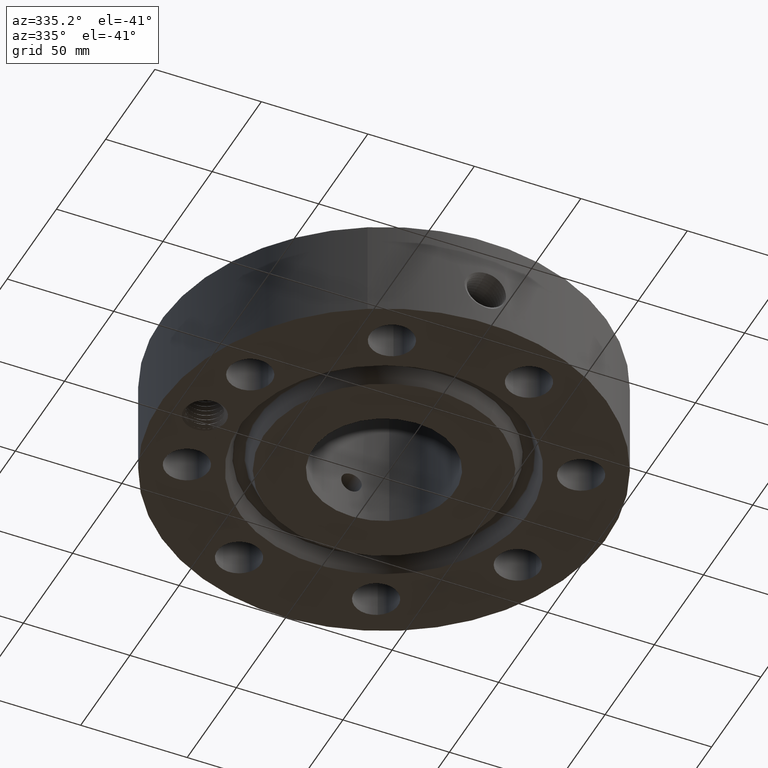
[diagram: clean part render]
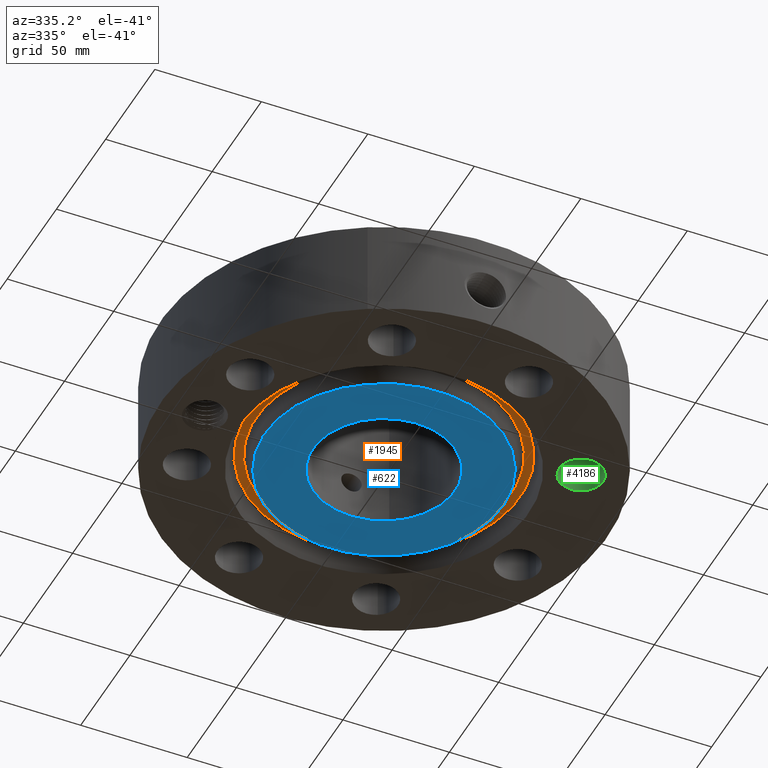
[diagram: same view with three faces highlighted in distinct colors, each labeled with its STEP entity id]
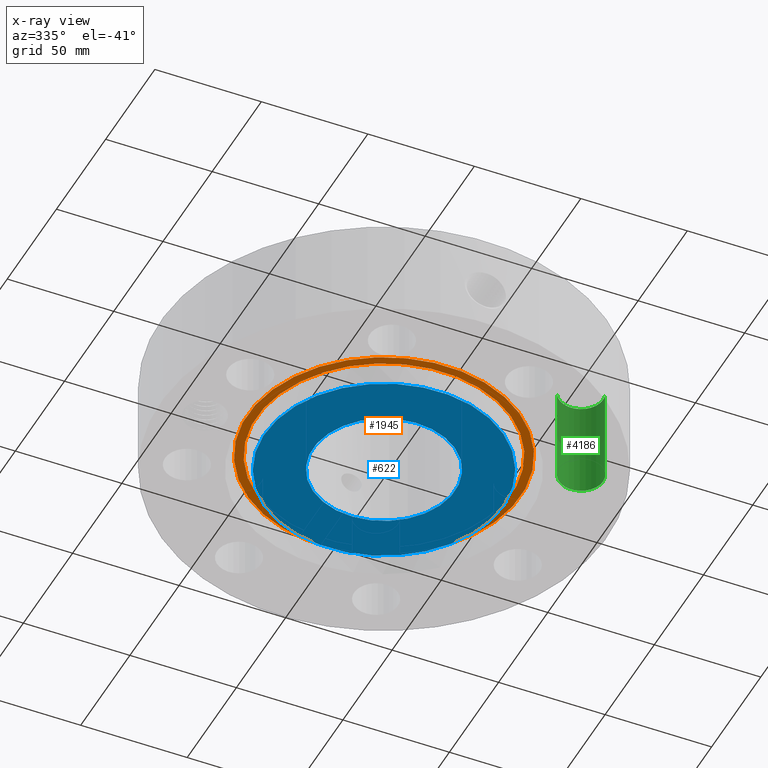
[diagram: x-ray of the same camera — body ghosted, the three highlighted faces saturated]
A machine part, auxiliary view with three faces highlighted in distinct colors.
The next image is the same camera in x-ray (body ghosted, the three faces saturated) — at least one of them is partly hidden behind the body in this view.
Their STEP definitions:

[orange] entity #1945 — the highlighted planar face has unit normal (0, 0, 1).
#1425=AXIS2_PLACEMENT_3D('Circle Axis2P3D',#1423,#1424,$) ;
#1451=AXIS2_PLACEMENT_3D('Circle Axis2P3D',#1449,#1450,$) ;
#1921=AXIS2_PLACEMENT_3D('Plane Axis2P3D',#1918,#1919,#1920) ;
#1925=AXIS2_PLACEMENT_3D('Circle Axis2P3D',#1923,#1924,$) ;
#1934=AXIS2_PLACEMENT_3D('Circle Axis2P3D',#1932,#1933,$) ;
#1423=CARTESIAN_POINT('Axis2P3D Location',(0.,0.,0.313000000001)) ;
#1427=CARTESIAN_POINT('Vertex',(1.12970830473,-2.06791718093,0.313000000001)) ;
#1429=CARTESIAN_POINT('Vertex',(-1.12970830473,2.06791718093,0.313000000001)) ;
#1449=CARTESIAN_POINT('Axis2P3D Location',(0.,0.,0.313000000001)) ;
#1918=CARTESIAN_POINT('Axis2P3D Location',(0.,2.35637906988,0.313000000001)) ;
#1923=CARTESIAN_POINT('Axis2P3D Location',(0.,0.,0.313000000001)) ;
#1927=CARTESIAN_POINT('Vertex',(-1.20749119597,2.2102978083,0.313000000001)) ;
#1929=CARTESIAN_POINT('Vertex',(1.20749119597,-2.2102978083,0.313000000001)) ;
#1932=CARTESIAN_POINT('Axis2P3D Location',(0.,0.,0.313000000001)) ;
#1424=DIRECTION('Axis2P3D Direction',(0.,0.,0.0393700787402)) ;
#1450=DIRECTION('Axis2P3D Direction',(0.,0.,0.0393700787402)) ;
#1919=DIRECTION('Axis2P3D Direction',(0.,0.,0.0393700787402)) ;
#1920=DIRECTION('Axis2P3D XDirection',(0.0393700787402,0.,0.)) ;
#1924=DIRECTION('Axis2P3D Direction',(0.,0.,0.0393700787402)) ;
#1933=DIRECTION('Axis2P3D Direction',(0.,0.,0.0393700787402)) ;
#1938=ORIENTED_EDGE('',*,*,#1931,.F.) ;
#1939=ORIENTED_EDGE('',*,*,#1936,.F.) ;
#1942=ORIENTED_EDGE('',*,*,#1431,.T.) ;
#1943=ORIENTED_EDGE('',*,*,#1453,.T.) ;
#1944=FACE_BOUND('',#1941,.T.) ;
#1945=ADVANCED_FACE('PartBody',(#1940,#1944),#1922,.F.) ;
#1426=CIRCLE('generated circle',#1425,2.35637906988) ;
#1452=CIRCLE('generated circle',#1451,2.35637906988) ;
#1926=CIRCLE('generated circle',#1925,2.51862093014) ;
#1935=CIRCLE('generated circle',#1934,2.51862093014) ;
#1431=EDGE_CURVE('',#1428,#1430,#1426,.T.) ;
#1453=EDGE_CURVE('',#1430,#1428,#1452,.T.) ;
#1931=EDGE_CURVE('',#1928,#1930,#1926,.T.) ;
#1936=EDGE_CURVE('',#1930,#1928,#1935,.T.) ;
#1937=EDGE_LOOP('',(#1938,#1939)) ;
#1941=EDGE_LOOP('',(#1942,#1943)) ;
#1940=FACE_OUTER_BOUND('',#1937,.T.) ;
#1922=PLANE('',#1921) ;
#1428=VERTEX_POINT('',#1427) ;
#1430=VERTEX_POINT('',#1429) ;
#1928=VERTEX_POINT('',#1927) ;
#1930=VERTEX_POINT('',#1929) ;

[blue] entity #622 — the highlighted planar face has unit normal (0, 0, -1).
#252=AXIS2_PLACEMENT_3D('Circle Axis2P3D',#250,#251,$) ;
#543=AXIS2_PLACEMENT_3D('Circle Axis2P3D',#541,#542,$) ;
#598=AXIS2_PLACEMENT_3D('Plane Axis2P3D',#595,#596,#597) ;
#602=AXIS2_PLACEMENT_3D('Circle Axis2P3D',#600,#601,$) ;
#611=AXIS2_PLACEMENT_3D('Circle Axis2P3D',#609,#610,$) ;
#247=CARTESIAN_POINT('Vertex',(0.629006306651,1.1513883212,-1.39870617276E-015)) ;
#250=CARTESIAN_POINT('Axis2P3D Location',(0.,0.,-2.23792987641E-015)) ;
#254=CARTESIAN_POINT('Vertex',(-0.629006306651,-1.1513883212,-1.39870617276E-015)) ;
#541=CARTESIAN_POINT('Axis2P3D Location',(0.,0.,-2.23792987641E-015)) ;
#595=CARTESIAN_POINT('Axis2P3D Location',(0.,1.31200000001,0.)) ;
#600=CARTESIAN_POINT('Axis2P3D Location',(5.59482469102E-016,0.,0.)) ;
#604=CARTESIAN_POINT('Vertex',(-1.05617446155,1.93331438385,-8.74191357973E-018)) ;
#606=CARTESIAN_POINT('Vertex',(1.05617446155,-1.93331438385,0.)) ;
#609=CARTESIAN_POINT('Axis2P3D Location',(-5.59482469102E-016,2.79741234551E-016,0.)) ;
#251=DIRECTION('Axis2P3D Direction',(0.,0.,-0.0393700787402)) ;
#542=DIRECTION('Axis2P3D Direction',(0.,0.,-0.0393700787402)) ;
#596=DIRECTION('Axis2P3D Direction',(0.,0.,-0.0393700787402)) ;
#597=DIRECTION('Axis2P3D XDirection',(0.0393700787402,0.,0.)) ;
#601=DIRECTION('Axis2P3D Direction',(0.,0.,-0.0393700787402)) ;
#610=DIRECTION('Axis2P3D Direction',(0.,0.,-0.0393700787402)) ;
#615=ORIENTED_EDGE('',*,*,#608,.T.) ;
#616=ORIENTED_EDGE('',*,*,#613,.T.) ;
#619=ORIENTED_EDGE('',*,*,#256,.F.) ;
#620=ORIENTED_EDGE('',*,*,#545,.F.) ;
#621=FACE_BOUND('',#618,.T.) ;
#622=ADVANCED_FACE('PartBody',(#617,#621),#599,.T.) ;
#253=CIRCLE('generated circle',#252,1.31200000001) ;
#544=CIRCLE('generated circle',#543,1.31200000001) ;
#603=CIRCLE('generated circle',#602,2.20300000001) ;
#612=CIRCLE('generated circle',#611,2.20300000001) ;
#256=EDGE_CURVE('',#248,#255,#253,.T.) ;
#545=EDGE_CURVE('',#255,#248,#544,.T.) ;
#608=EDGE_CURVE('',#605,#607,#603,.T.) ;
#613=EDGE_CURVE('',#607,#605,#612,.T.) ;
#614=EDGE_LOOP('',(#615,#616)) ;
#618=EDGE_LOOP('',(#619,#620)) ;
#617=FACE_OUTER_BOUND('',#614,.T.) ;
#599=PLANE('',#598) ;
#248=VERTEX_POINT('',#247) ;
#255=VERTEX_POINT('',#254) ;
#605=VERTEX_POINT('',#604) ;
#607=VERTEX_POINT('',#606) ;

[green] entity #4186 — the highlighted cylindrical surface (edge-blend (fillet) strip) has radius 10.287 mm, axis along (0, -0, -1).
#2954=AXIS2_PLACEMENT_3D('Circle Axis2P3D',#2952,#2953,$) ;
#4147=AXIS2_PLACEMENT_3D('Cylinder Axis2P3D',#4144,#4145,#4146) ;
#4177=AXIS2_PLACEMENT_3D('Circle Axis2P3D',#4175,#4176,$) ;
#2952=CARTESIAN_POINT('Axis2P3D Location',(3.05804125262,-1.26668216113,1.81300000001)) ;
#2956=CARTESIAN_POINT('Vertex',(2.70262031506,-1.072514818,1.81300000001)) ;
#2958=CARTESIAN_POINT('Vertex',(3.41346219019,-1.46084950427,1.81300000001)) ;
#4144=CARTESIAN_POINT('Axis2P3D Location',(3.05804125262,-1.26668216113,1.80906299213)) ;
#4149=CARTESIAN_POINT('Line Origine',(3.41346219019,-1.46084950427,0.906500000004)) ;
#4153=CARTESIAN_POINT('Vertex',(3.41346219019,-1.46084950427,0.)) ;
#4160=CARTESIAN_POINT('Vertex',(2.70262031506,-1.072514818,0.)) ;
#4163=CARTESIAN_POINT('Line Origine',(2.70262031506,-1.072514818,0.906500000004)) ;
#4175=CARTESIAN_POINT('Axis2P3D Location',(3.05804125262,-1.26668216113,0.)) ;
#2953=DIRECTION('Axis2P3D Direction',(0.,0.,-0.0393700787402)) ;
#4145=DIRECTION('Axis2P3D Direction',(0.,-0.,-0.0393700787402)) ;
#4146=DIRECTION('Axis2P3D XDirection',(-0.0345504945626,0.0188750212049,0.)) ;
#4150=DIRECTION('Vector Direction',(0.,0.,-0.0393700787402)) ;
#4164=DIRECTION('Vector Direction',(0.,0.,-0.0393700787402)) ;
#4176=DIRECTION('Axis2P3D Direction',(0.,-0.,-0.0393700787402)) ;
#4151=VECTOR('Line Direction',#4150,0.0393700787402) ;
#4165=VECTOR('Line Direction',#4164,0.0393700787402) ;
#4181=ORIENTED_EDGE('',*,*,#4167,.F.) ;
#4182=ORIENTED_EDGE('',*,*,#4179,.T.) ;
#4183=ORIENTED_EDGE('',*,*,#4155,.T.) ;
#4184=ORIENTED_EDGE('',*,*,#2960,.F.) ;
#4186=ADVANCED_FACE('PartBody',(#4185),#4148,.F.) ;
#2955=CIRCLE('generated circle',#2954,0.405000000002) ;
#4178=CIRCLE('generated circle',#4177,0.405000000002) ;
#4148=CYLINDRICAL_SURFACE('generated cylinder',#4147,0.405000000002) ;
#2960=EDGE_CURVE('',#2957,#2959,#2955,.T.) ;
#4155=EDGE_CURVE('',#4154,#2959,#4152,.F.) ;
#4167=EDGE_CURVE('',#4161,#2957,#4166,.F.) ;
#4179=EDGE_CURVE('',#4161,#4154,#4178,.T.) ;
#4180=EDGE_LOOP('',(#4181,#4182,#4183,#4184)) ;
#4185=FACE_OUTER_BOUND('',#4180,.T.) ;
#4152=LINE('Line',#4149,#4151) ;
#4166=LINE('Line',#4163,#4165) ;
#2957=VERTEX_POINT('',#2956) ;
#2959=VERTEX_POINT('',#2958) ;
#4154=VERTEX_POINT('',#4153) ;
#4161=VERTEX_POINT('',#4160) ;